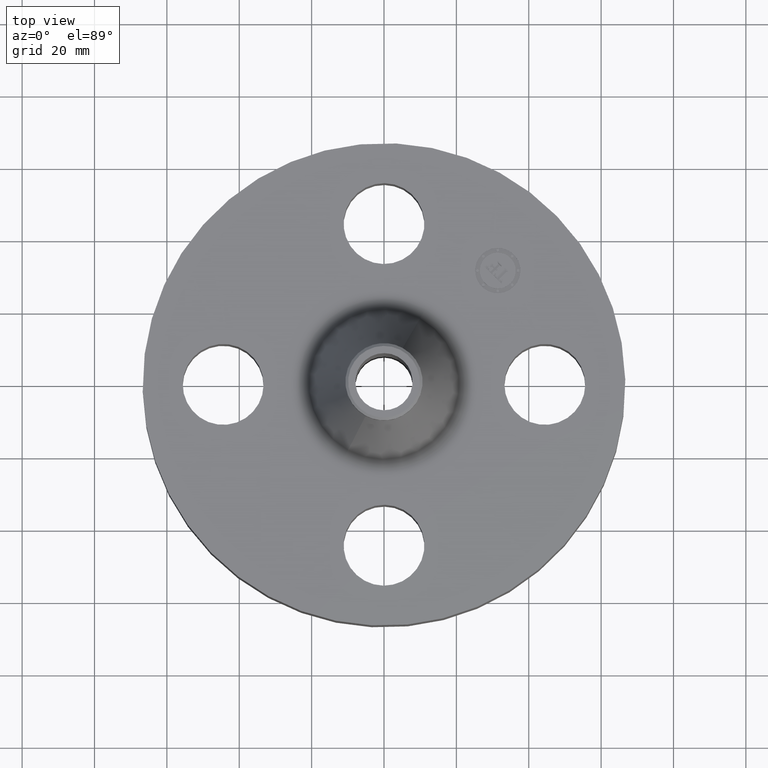
[diagram: clean part render]
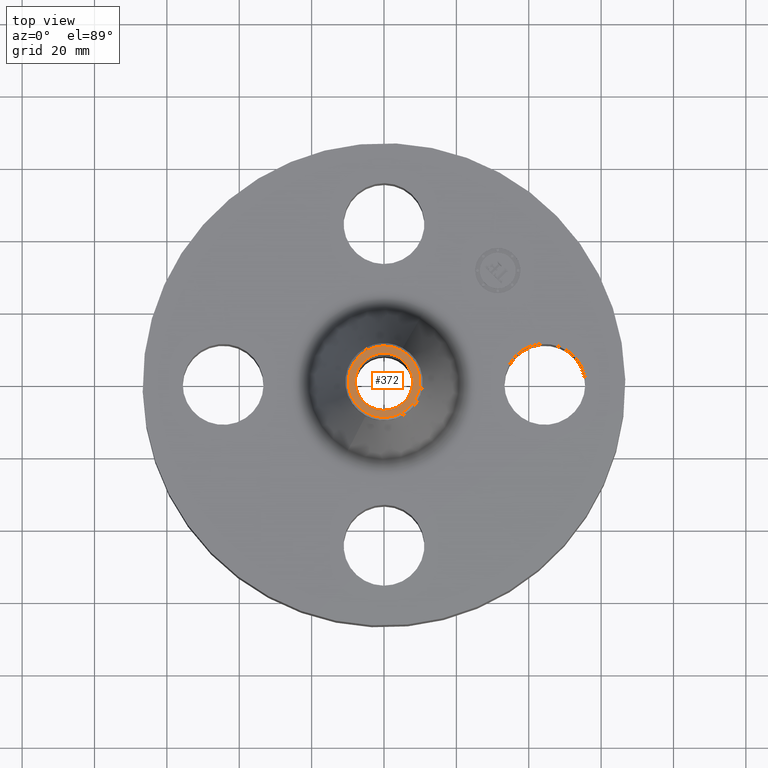
[diagram: same view with one face highlighted and labeled with its STEP entity id]
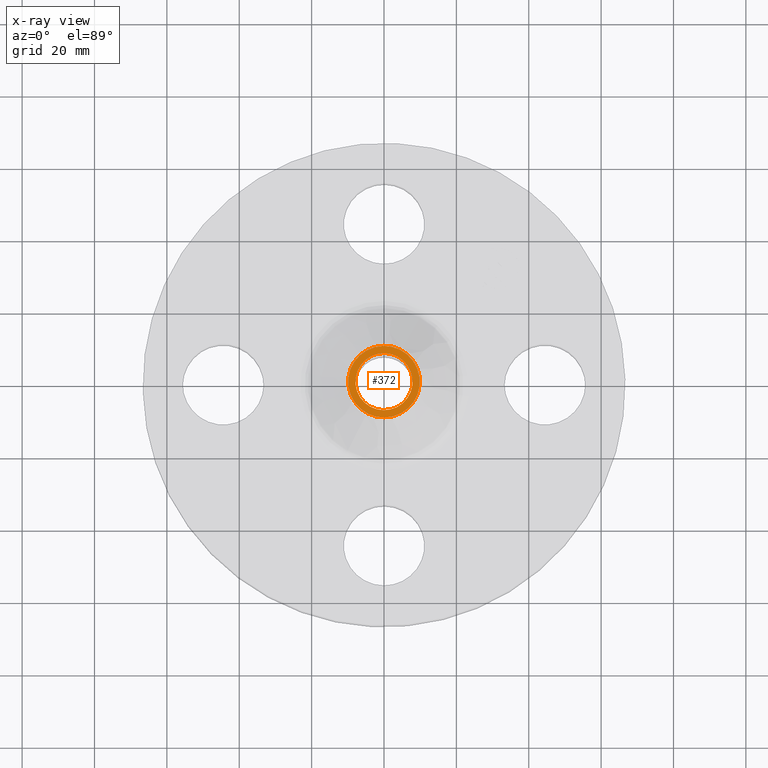
[diagram: x-ray of the same camera — body ghosted, the highlighted face saturated]
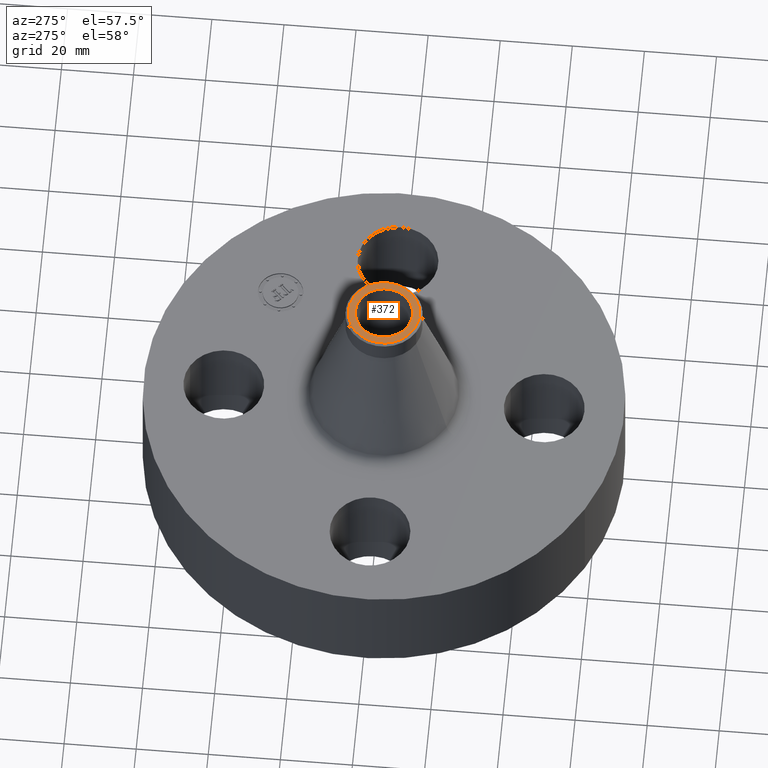
[diagram: same view with one face highlighted and labeled with its STEP entity id]
A machine part, top view. The second image highlights one B-rep face of the part: STEP entity #372.
The next image is the same camera in x-ray: the body ghosted, the highlighted face saturated — about 0% of this face is hidden behind the body in this view.
A second angle (auxiliary view) of the same face is appended — the face is thin or edge-on in the first view.
In plain terms, the highlighted planar face has unit normal (0, 0, -1).
Its self-contained STEP definition (entity closure, byte-faithful):
#322=AXIS2_PLACEMENT_3D('Circle Axis2P3D',#320,#321,$) ;
#343=AXIS2_PLACEMENT_3D('Plane Axis2P3D',#340,#341,#342) ;
#347=AXIS2_PLACEMENT_3D('Circle Axis2P3D',#345,#346,$) ;
#356=AXIS2_PLACEMENT_3D('Circle Axis2P3D',#354,#355,$) ;
#365=AXIS2_PLACEMENT_3D('Circle Axis2P3D',#363,#364,$) ;
#317=CARTESIAN_POINT('Vertex',(0.186851384916,-0.342029165874,2.88000000001)) ;
#320=CARTESIAN_POINT('Axis2P3D Location',(0.,0.,2.88000000001)) ;
#324=CARTESIAN_POINT('Vertex',(-0.186851384916,0.342029165874,2.88000000001)) ;
#340=CARTESIAN_POINT('Axis2P3D Location',(0.,0.420000000002,2.88000000001)) ;
#345=CARTESIAN_POINT('Axis2P3D Location',(0.,0.,2.88000000001)) ;
#354=CARTESIAN_POINT('Axis2P3D Location',(0.,0.,2.88000000001)) ;
#358=CARTESIAN_POINT('Vertex',(-0.149101342507,-0.272928176749,2.88000000001)) ;
#360=CARTESIAN_POINT('Vertex',(0.149101342507,0.272928176749,2.88000000001)) ;
#363=CARTESIAN_POINT('Axis2P3D Location',(0.,0.,2.88000000001)) ;
#321=DIRECTION('Axis2P3D Direction',(0.,0.,-0.0393700787402)) ;
#341=DIRECTION('Axis2P3D Direction',(0.,0.,-0.0393700787402)) ;
#342=DIRECTION('Axis2P3D XDirection',(0.0393700787402,0.,0.)) ;
#346=DIRECTION('Axis2P3D Direction',(0.,0.,-0.0393700787402)) ;
#355=DIRECTION('Axis2P3D Direction',(0.,0.,-0.0393700787402)) ;
#364=DIRECTION('Axis2P3D Direction',(0.,0.,-0.0393700787402)) ;
#351=ORIENTED_EDGE('',*,*,#349,.T.) ;
#352=ORIENTED_EDGE('',*,*,#326,.T.) ;
#369=ORIENTED_EDGE('',*,*,#362,.T.) ;
#370=ORIENTED_EDGE('',*,*,#367,.T.) ;
#371=FACE_BOUND('',#368,.T.) ;
#372=ADVANCED_FACE('PartBody',(#353,#371),#344,.F.) ;
#323=CIRCLE('generated circle',#322,0.389740157482) ;
#348=CIRCLE('generated circle',#347,0.389740157482) ;
#357=CIRCLE('generated circle',#356,0.311000000001) ;
#366=CIRCLE('generated circle',#365,0.311000000001) ;
#326=EDGE_CURVE('',#325,#318,#323,.F.) ;
#349=EDGE_CURVE('',#318,#325,#348,.F.) ;
#362=EDGE_CURVE('',#359,#361,#357,.T.) ;
#367=EDGE_CURVE('',#361,#359,#366,.T.) ;
#350=EDGE_LOOP('',(#351,#352)) ;
#368=EDGE_LOOP('',(#369,#370)) ;
#353=FACE_OUTER_BOUND('',#350,.T.) ;
#344=PLANE('',#343) ;
#318=VERTEX_POINT('',#317) ;
#325=VERTEX_POINT('',#324) ;
#359=VERTEX_POINT('',#358) ;
#361=VERTEX_POINT('',#360) ;